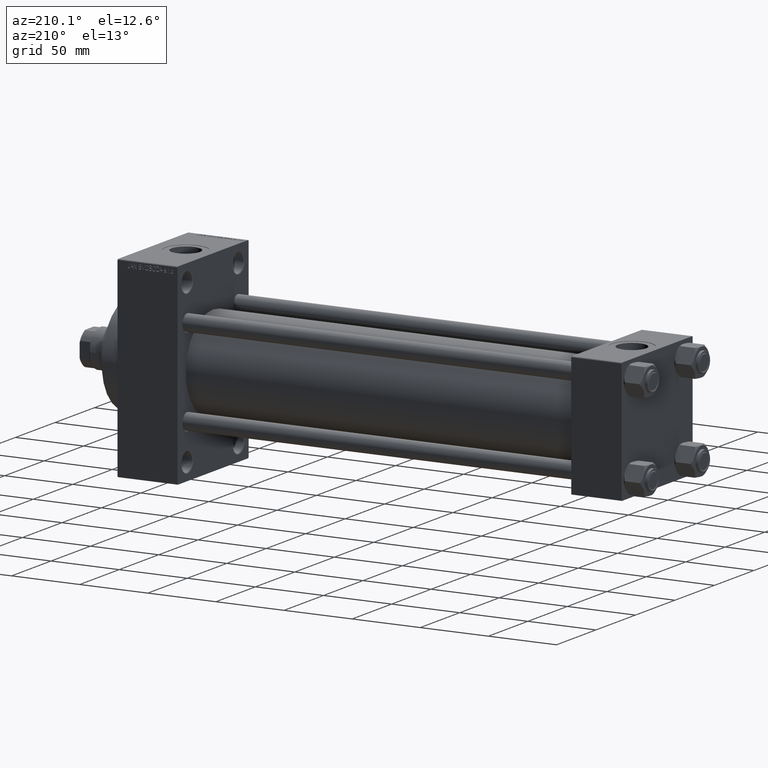
[diagram: clean part render]
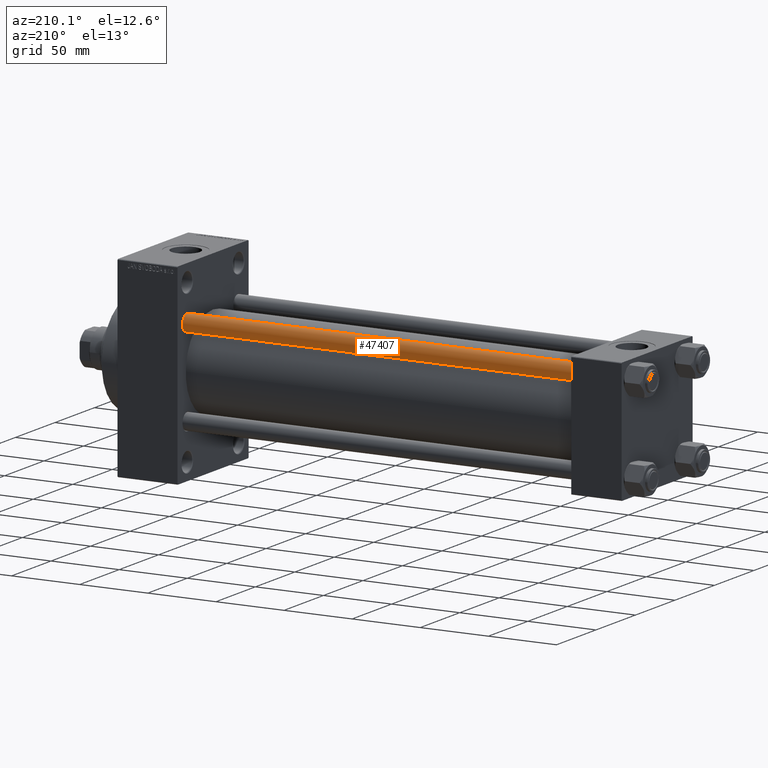
[diagram: same view with one face highlighted and labeled with its STEP entity id]
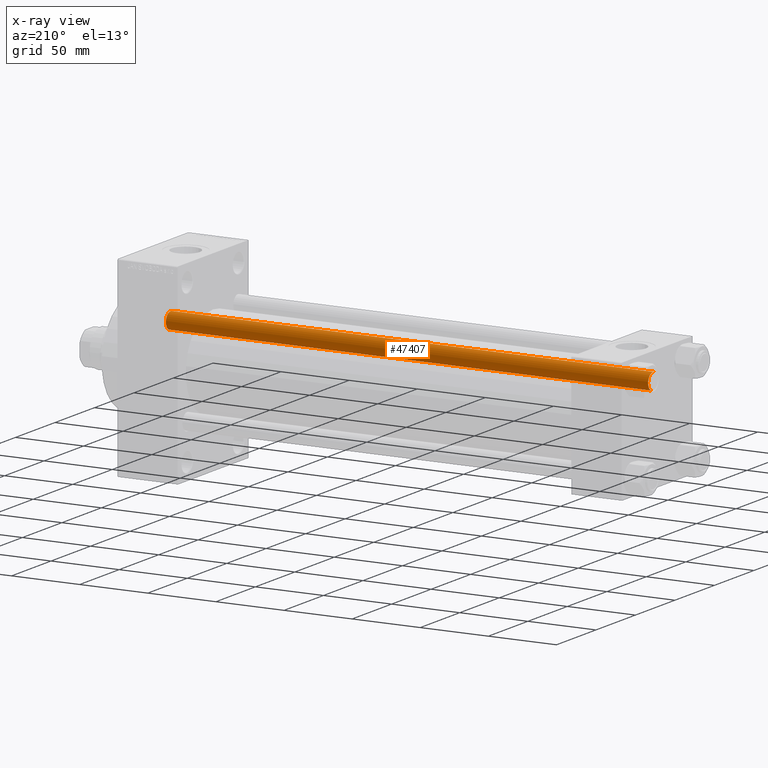
[diagram: x-ray of the same camera — body ghosted, the highlighted face saturated]
A machine part, auxiliary view. The second image highlights one B-rep face of the part: STEP entity #47407.
The next image is the same camera in x-ray: the body ghosted, the highlighted face saturated — about 0% of this face is hidden behind the body in this view.
In plain terms, the highlighted cylindrical surface (edge-blend (fillet) strip) has radius 6 mm, axis along (-1, -0, 0).
Its self-contained STEP definition (entity closure, byte-faithful):
#563 = EDGE_CURVE ( 'NONE', #28571, #8017, #13047, .T. ) ;
#718 = CARTESIAN_POINT ( 'NONE',  ( -6.000000000000000888, 0.000000000000000000, 355.0000000000000000 ) ) ;
#1831 = CIRCLE ( 'NONE', #16425, 6.000000000000000888 ) ;
#3272 = DIRECTION ( 'NONE',  ( 0.000000000000000000, 0.000000000000000000, -1.000000000000000000 ) ) ;
#6020 = AXIS2_PLACEMENT_3D ( 'NONE', #34708, #24177, #19875 ) ;
#7350 = EDGE_CURVE ( 'NONE', #15675, #9193, #1831, .T. ) ;
#8017 = VERTEX_POINT ( 'NONE', #36499 ) ;
#9193 = VERTEX_POINT ( 'NONE', #9882 ) ;
#9882 = CARTESIAN_POINT ( 'NONE',  ( -6.000000000000000888, 0.000000000000000000, 0.5000000000001114664 ) ) ;
#10257 = CARTESIAN_POINT ( 'NONE',  ( 0.000000000000000000, 0.000000000000000000, 354.5000000000000000 ) ) ;
#11026 = ORIENTED_EDGE ( 'NONE', *, *, #7350, .T. ) ;
#11465 = EDGE_LOOP ( 'NONE', ( #33428, #36033, #11026, #30508 ) ) ;
#11556 = DIRECTION ( 'NONE',  ( -0.000000000000000000, -0.000000000000000000, -1.000000000000000000 ) ) ;
#12528 = DIRECTION ( 'NONE',  ( -0.000000000000000000, -0.000000000000000000, -1.000000000000000000 ) ) ;
#13047 = CIRCLE ( 'NONE', #29095, 6.000000000000000888 ) ;
#15675 = VERTEX_POINT ( 'NONE', #35644 ) ;
#16425 = AXIS2_PLACEMENT_3D ( 'NONE', #41319, #30770, #37248 ) ;
#19875 = DIRECTION ( 'NONE',  ( -1.000000000000000000, 0.000000000000000000, 0.000000000000000000 ) ) ;
#24177 = DIRECTION ( 'NONE',  ( -0.000000000000000000, -0.000000000000000000, -1.000000000000000000 ) ) ;
#24874 = DIRECTION ( 'NONE',  ( 1.000000000000000000, 0.000000000000000000, 0.000000000000000000 ) ) ;
#26869 = LINE ( 'NONE', #718, #34187 ) ;
#28571 = VERTEX_POINT ( 'NONE', #29735 ) ;
#29095 = AXIS2_PLACEMENT_3D ( 'NONE', #10257, #3272, #24874 ) ;
#29735 = CARTESIAN_POINT ( 'NONE',  ( -6.000000000000000888, 0.000000000000000000, 354.5000000000000000 ) ) ;
#30508 = ORIENTED_EDGE ( 'NONE', *, *, #39665, .F. ) ;
#30770 = DIRECTION ( 'NONE',  ( -0.000000000000000000, -0.000000000000000000, 1.000000000000000000 ) ) ;
#33428 = ORIENTED_EDGE ( 'NONE', *, *, #563, .T. ) ;
#33455 = VECTOR ( 'NONE', #12528, 1000.000000000000000 ) ;
#34187 = VECTOR ( 'NONE', #11556, 1000.000000000000000 ) ;
#34708 = CARTESIAN_POINT ( 'NONE',  ( 0.000000000000000000, 0.000000000000000000, 355.0000000000000000 ) ) ;
#35644 = CARTESIAN_POINT ( 'NONE',  ( 6.000000000000000888, 7.347880794884120722E-16, 0.5000000000001114664 ) ) ;
#36033 = ORIENTED_EDGE ( 'NONE', *, *, #44590, .T. ) ;
#36499 = CARTESIAN_POINT ( 'NONE',  ( 6.000000000000000888, 7.347880794884120722E-16, 354.5000000000000000 ) ) ;
#37248 = DIRECTION ( 'NONE',  ( 1.000000000000000000, 0.000000000000000000, 0.000000000000000000 ) ) ;
#39026 = CYLINDRICAL_SURFACE ( 'NONE', #6020, 6.000000000000000888 ) ;
#39665 = EDGE_CURVE ( 'NONE', #28571, #9193, #26869, .T. ) ;
#41319 = CARTESIAN_POINT ( 'NONE',  ( 0.000000000000000000, 0.000000000000000000, 0.5000000000001114664 ) ) ;
#44590 = EDGE_CURVE ( 'NONE', #8017, #15675, #45344, .T. ) ;
#44869 = CARTESIAN_POINT ( 'NONE',  ( 6.000000000000000888, 7.347880794884120722E-16, 355.0000000000000000 ) ) ;
#45344 = LINE ( 'NONE', #44869, #33455 ) ;
#45738 = FACE_OUTER_BOUND ( 'NONE', #11465, .T. ) ;
#47407 = ADVANCED_FACE ( 'NONE', ( #45738 ), #39026, .T. ) ;